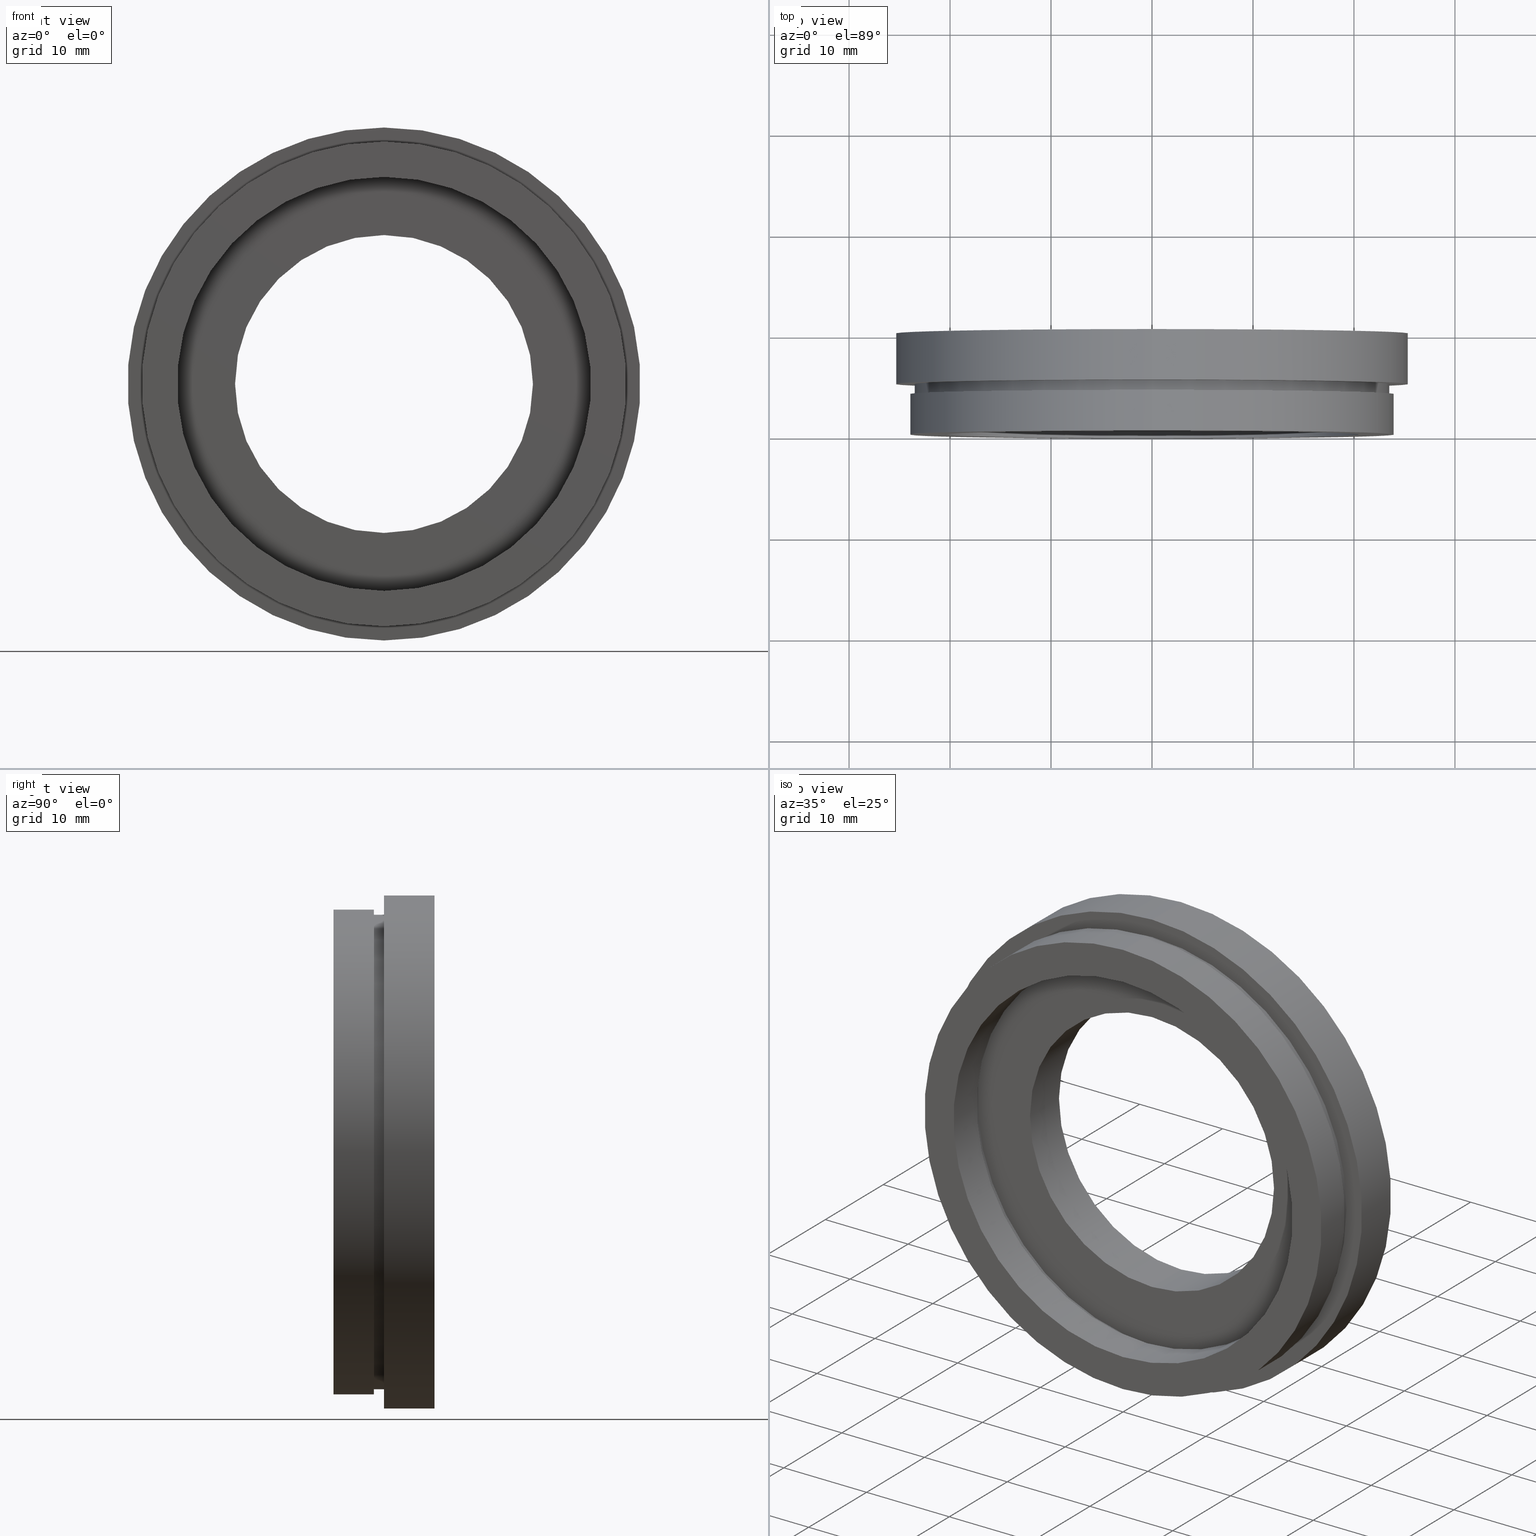
[diagram: canonical four-view strip — front | top / right | iso, engineering-drawing reading convention]
A machine part, canonical four-view strip (front | top / right | iso — engineering-drawing reading convention). The complete STEP part file that produces these views, byte-faithful:
ISO-10303-21;
HEADER;
FILE_DESCRIPTION (( 'STEP AP214' ),
    '1' );
FILE_NAME ('504106.STEP',
    '2019-10-10T03:19:35',
    ( 'user' ),
    ( '΢���й�' ),
    'SwSTEP 2.0',
    'SolidWorks 2016',
    '' );
FILE_SCHEMA (( 'AUTOMOTIVE_DESIGN' ));
ENDSEC;

DATA;
#1 = DIRECTION ( 'NONE',  ( 0.0000000000000000000, 0.0000000000000000000, 1.000000000000000000 ) ) ;
#2 = FACE_OUTER_BOUND ( 'NONE', #329, .T. ) ;
#3 = FILL_AREA_STYLE_COLOUR ( '', #39 ) ;
#4 = AXIS2_PLACEMENT_3D ( 'NONE', #80, #128, #228 ) ;
#5 = DIRECTION ( 'NONE',  ( 0.0000000000000000000, 0.0000000000000000000, 1.000000000000000000 ) ) ;
#6 = STYLED_ITEM ( 'NONE', ( #622 ), #111 ) ;
#7 = ORIENTED_EDGE ( 'NONE', *, *, #17, .T. ) ;
#8 = DIRECTION ( 'NONE',  ( 0.0000000000000000000, 0.0000000000000000000, 1.000000000000000000 ) ) ;
#9 = PRODUCT_DEFINITION_CONTEXT ( 'detailed design', #52, 'design' ) ;
#10 = FACE_OUTER_BOUND ( 'NONE', #341, .T. ) ;
#11 = CARTESIAN_POINT ( 'NONE',  ( 0.0000000000000000000, 4.999999999999999100, 0.0000000000000000000 ) ) ;
#12 = ORIENTED_EDGE ( 'NONE', *, *, #468, .T. ) ;
#13 = PRESENTATION_STYLE_ASSIGNMENT (( #607 ) ) ;
#14 = CYLINDRICAL_SURFACE ( 'NONE', #198, 21.10000000000000100 ) ;
#15 = VECTOR ( 'NONE', #16, 1000.000000000000000 ) ;
#16 = DIRECTION ( 'NONE',  ( -0.0000000000000000000, 1.000000000000000000, -0.0000000000000000000 ) ) ;
#17 = EDGE_CURVE ( 'NONE', #443, #312, #134, .T. ) ;
#18 = DIRECTION ( 'NONE',  ( -0.0000000000000000000, 1.000000000000000000, -0.0000000000000000000 ) ) ;
#19 = CARTESIAN_POINT ( 'NONE',  ( 0.0000000000000000000, 5.000000000000000900, 0.0000000000000000000 ) ) ;
#20 = DIRECTION ( 'NONE',  ( -0.0000000000000000000, 1.000000000000000000, -0.0000000000000000000 ) ) ;
#21 = DIRECTION ( 'NONE',  ( 0.0000000000000000000, 0.0000000000000000000, 1.000000000000000000 ) ) ;
#22 =( NAMED_UNIT ( * ) SI_UNIT ( $, .STERADIAN. ) SOLID_ANGLE_UNIT ( ) );
#23 = FILL_AREA_STYLE_COLOUR ( '', #250 ) ;
#24 = ORIENTED_EDGE ( 'NONE', *, *, #227, .T. ) ;
#25 = PLANE ( 'NONE',  #449 ) ;
#26 = AXIS2_PLACEMENT_3D ( 'NONE', #120, #473, #173 ) ;
#27 = FACE_OUTER_BOUND ( 'NONE', #63, .T. ) ;
#28 = DIRECTION ( 'NONE',  ( -0.0000000000000000000, 1.000000000000000000, -0.0000000000000000000 ) ) ;
#29 = DIRECTION ( 'NONE',  ( -0.0000000000000000000, 1.000000000000000000, -0.0000000000000000000 ) ) ;
#30 = MECHANICAL_DESIGN_GEOMETRIC_PRESENTATION_REPRESENTATION (  '', ( #121 ), #161 ) ;
#31 = CARTESIAN_POINT ( 'NONE',  ( 0.0000000000000000000, 5.000000000000000900, 0.0000000000000000000 ) ) ;
#32 = ORIENTED_EDGE ( 'NONE', *, *, #227, .F. ) ;
#33 = SURFACE_STYLE_FILL_AREA ( #238 ) ;
#34 = CARTESIAN_POINT ( 'NONE',  ( 0.0000000000000000000, 13.74468085106383300, 23.50000000000000000 ) ) ;
#35 = CARTESIAN_POINT ( 'NONE',  ( 0.0000000000000000000, 4.999999999999999100, 0.0000000000000000000 ) ) ;
#36 = STYLED_ITEM ( 'NONE', ( #46 ), #66 ) ;
#37 = PRESENTATION_STYLE_ASSIGNMENT (( #435 ) ) ;
#38 = CARTESIAN_POINT ( 'NONE',  ( 0.0000000000000000000, 13.74468085106383300, 0.0000000000000000000 ) ) ;
#39 = COLOUR_RGB ( '',1.000000000000000000, 1.000000000000000000, 1.000000000000000000 ) ;
#40 = CIRCLE ( 'NONE', #296, 25.39999999999999900 ) ;
#41 = VERTEX_POINT ( 'NONE', #350 ) ;
#42 = CARTESIAN_POINT ( 'NONE',  ( 0.0000000000000000000, 9.999999999999998200, 0.0000000000000000000 ) ) ;
#43 = COLOUR_RGB ( '',1.000000000000000000, 1.000000000000000000, 1.000000000000000000 ) ;
#44 = DIRECTION ( 'NONE',  ( 0.0000000000000000000, 0.0000000000000000000, 1.000000000000000000 ) ) ;
#45 = DIRECTION ( 'NONE',  ( 0.0000000000000000000, 0.0000000000000000000, 1.000000000000000000 ) ) ;
#46 = PRESENTATION_STYLE_ASSIGNMENT (( #54 ) ) ;
#47 = AXIS2_PLACEMENT_3D ( 'NONE', #620, #321, #337 ) ;
#48 = CARTESIAN_POINT ( 'NONE',  ( 0.0000000000000000000, 9.999999999999998200, 0.0000000000000000000 ) ) ;
#49 = VECTOR ( 'NONE', #492, 1000.000000000000000 ) ;
#50 = SURFACE_SIDE_STYLE ('',( #33 ) ) ;
#51 = EDGE_CURVE ( 'NONE', #394, #348, #587, .T. ) ;
#52 = APPLICATION_CONTEXT ( 'automotive_design' ) ;
#53 = MANIFOLD_SOLID_BREP ( '��ת1', #381 ) ;
#54 = SURFACE_STYLE_USAGE ( .BOTH. , #50 ) ;
#55 =( LENGTH_UNIT ( ) NAMED_UNIT ( * ) SI_UNIT ( .MILLI., .METRE. ) );
#56 = CIRCLE ( 'NONE', #569, 25.39999999999999900 ) ;
#57 = PRODUCT_DEFINITION_SHAPE ( 'NONE', 'NONE',  #231 ) ;
#58 = AXIS2_PLACEMENT_3D ( 'NONE', #616, #419, #596 ) ;
#59 = EDGE_LOOP ( 'NONE', ( #7, #409 ) ) ;
#60 = AXIS2_PLACEMENT_3D ( 'NONE', #11, #518, #21 ) ;
#61 = CARTESIAN_POINT ( 'NONE',  ( 2.584004746200915400E-015, 13.74468085106383300, -21.10000000000000100 ) ) ;
#62 = ORIENTED_EDGE ( 'NONE', *, *, #437, .T. ) ;
#63 = EDGE_LOOP ( 'NONE', ( #172, #368 ) ) ;
#64 = PRESENTATION_LAYER_ASSIGNMENT (  '', '', ( #121 ) ) ;
#65 = CIRCLE ( 'NONE', #47, 21.10000000000000100 ) ;
#66 = ADVANCED_FACE ( 'NONE', ( #117 ), #258, .T. ) ;
#67 = DIRECTION ( 'NONE',  ( -0.0000000000000000000, 1.000000000000000000, -0.0000000000000000000 ) ) ;
#68 = CIRCLE ( 'NONE', #452, 24.00000000000000000 ) ;
#69 = EDGE_CURVE ( 'NONE', #401, #182, #624, .T. ) ;
#70 = ORIENTED_EDGE ( 'NONE', *, *, #287, .F. ) ;
#71 = ORIENTED_EDGE ( 'NONE', *, *, #383, .F. ) ;
#72 = ORIENTED_EDGE ( 'NONE', *, *, #324, .T. ) ;
#73 = CARTESIAN_POINT ( 'NONE',  ( 0.0000000000000000000, 13.74468085106383300, 0.0000000000000000000 ) ) ;
#74 = DIRECTION ( 'NONE',  ( 0.0000000000000000000, 0.0000000000000000000, 1.000000000000000000 ) ) ;
#75 = PRODUCT_RELATED_PRODUCT_CATEGORY ( 'part', '', ( #581 ) ) ;
#76 = EDGE_LOOP ( 'NONE', ( #574, #585 ) ) ;
#77 =( NAMED_UNIT ( * ) SI_UNIT ( $, .STERADIAN. ) SOLID_ANGLE_UNIT ( ) );
#78 = AXIS2_PLACEMENT_3D ( 'NONE', #480, #88, #5 ) ;
#79 = CARTESIAN_POINT ( 'NONE',  ( 0.0000000000000000000, 9.999999999999998200, 0.0000000000000000000 ) ) ;
#80 = CARTESIAN_POINT ( 'NONE',  ( 0.0000000000000000000, 13.74468085106383300, 0.0000000000000000000 ) ) ;
#81 = ORIENTED_EDGE ( 'NONE', *, *, #310, .F. ) ;
#82 = CARTESIAN_POINT ( 'NONE',  ( 2.877919977996280300E-015, 4.000000000000000000, -23.50000000000000000 ) ) ;
#83 = ORIENTED_EDGE ( 'NONE', *, *, #418, .T. ) ;
#84 = VERTEX_POINT ( 'NONE', #427 ) ;
#85 = EDGE_LOOP ( 'NONE', ( #207, #572 ) ) ;
#86 = AXIS2_PLACEMENT_3D ( 'NONE', #216, #188, #573 ) ;
#87 = PRODUCT_DEFINITION_FORMATION_WITH_SPECIFIED_SOURCE ( '�κ�', '', #581, .NOT_KNOWN. ) ;
#88 = DIRECTION ( 'NONE',  ( -0.0000000000000000000, 1.000000000000000000, -0.0000000000000000000 ) ) ;
#89 = PRESENTATION_LAYER_ASSIGNMENT (  '', '', ( #106 ) ) ;
#90 = CARTESIAN_POINT ( 'NONE',  ( 0.0000000000000000000, 0.0000000000000000000, 20.50000000000000000 ) ) ;
#91 =( LENGTH_UNIT ( ) NAMED_UNIT ( * ) SI_UNIT ( .MILLI., .METRE. ) );
#92 = AXIS2_PLACEMENT_3D ( 'NONE', #403, #20, #74 ) ;
#93 = VERTEX_POINT ( 'NONE', #180 ) ;
#94 = AXIS2_PLACEMENT_3D ( 'NONE', #592, #167, #205 ) ;
#95 = FILL_AREA_STYLE ('',( #301 ) ) ;
#96 = CARTESIAN_POINT ( 'NONE',  ( 2.939152317953647900E-015, 0.0000000000000000000, -24.00000000000000000 ) ) ;
#97 = VECTOR ( 'NONE', #470, 1000.000000000000000 ) ;
#98 = AXIS2_PLACEMENT_3D ( 'NONE', #527, #322, #608 ) ;
#99 = ORIENTED_EDGE ( 'NONE', *, *, #383, .T. ) ;
#100 = CARTESIAN_POINT ( 'NONE',  ( 0.0000000000000000000, 4.999999999999999100, 21.10000000000000100 ) ) ;
#101 = ORIENTED_EDGE ( 'NONE', *, *, #247, .T. ) ;
#102 = DIRECTION ( 'NONE',  ( 0.0000000000000000000, 0.0000000000000000000, 1.000000000000000000 ) ) ;
#103 = CARTESIAN_POINT ( 'NONE',  ( 0.0000000000000000000, 9.999999999999998200, 25.39999999999999900 ) ) ;
#104 = ORIENTED_EDGE ( 'NONE', *, *, #354, .F. ) ;
#105 = MECHANICAL_DESIGN_GEOMETRIC_PRESENTATION_REPRESENTATION (  '', ( #351 ), #135 ) ;
#106 = STYLED_ITEM ( 'NONE', ( #107 ), #565 ) ;
#107 = PRESENTATION_STYLE_ASSIGNMENT (( #482 ) ) ;
#108 = AXIS2_PLACEMENT_3D ( 'NONE', #333, #615, #571 ) ;
#109 = ORIENTED_EDGE ( 'NONE', *, *, #277, .F. ) ;
#110 = VERTEX_POINT ( 'NONE', #186 ) ;
#111 = ADVANCED_FACE ( 'NONE', ( #395 ), #566, .T. ) ;
#112 = DIRECTION ( 'NONE',  ( -0.0000000000000000000, 1.000000000000000000, -0.0000000000000000000 ) ) ;
#113 = ORIENTED_EDGE ( 'NONE', *, *, #425, .F. ) ;
#114 = PRESENTATION_STYLE_ASSIGNMENT (( #138 ) ) ;
#115 = VERTEX_POINT ( 'NONE', #567 ) ;
#116 = EDGE_CURVE ( 'NONE', #294, #604, #562, .T. ) ;
#117 = FACE_OUTER_BOUND ( 'NONE', #463, .T. ) ;
#118 = ADVANCED_FACE ( 'NONE', ( #564 ), #469, .T. ) ;
#119 = CARTESIAN_POINT ( 'NONE',  ( 1.806354028742345800E-015, 9.999999999999998200, -14.75000000000000000 ) ) ;
#120 = CARTESIAN_POINT ( 'NONE',  ( 0.0000000000000000000, 0.0000000000000000000, 0.0000000000000000000 ) ) ;
#121 = STYLED_ITEM ( 'NONE', ( #13 ), #165 ) ;
#122 = DIRECTION ( 'NONE',  ( 0.0000000000000000000, 0.0000000000000000000, 1.000000000000000000 ) ) ;
#123 = CIRCLE ( 'NONE', #157, 23.50000000000000000 ) ;
#124 =( GEOMETRIC_REPRESENTATION_CONTEXT ( 3 ) GLOBAL_UNCERTAINTY_ASSIGNED_CONTEXT ( ( #421 ) ) GLOBAL_UNIT_ASSIGNED_CONTEXT ( ( #55, #602, #77 ) ) REPRESENTATION_CONTEXT ( 'NONE', 'WORKASPACE' ) );
#125 = DIRECTION ( 'NONE',  ( 0.0000000000000000000, 0.0000000000000000000, 1.000000000000000000 ) ) ;
#126 = DIRECTION ( 'NONE',  ( -0.0000000000000000000, 1.000000000000000000, -0.0000000000000000000 ) ) ;
#127 = MECHANICAL_DESIGN_GEOMETRIC_PRESENTATION_REPRESENTATION (  '', ( #106 ), #155 ) ;
#128 = DIRECTION ( 'NONE',  ( -0.0000000000000000000, 1.000000000000000000, -0.0000000000000000000 ) ) ;
#129 = CARTESIAN_POINT ( 'NONE',  ( 1.806354028742345800E-015, 4.999999999999999100, -14.75000000000000000 ) ) ;
#130 = EDGE_LOOP ( 'NONE', ( #304, #83, #334, #458 ) ) ;
#131 = ADVANCED_BREP_SHAPE_REPRESENTATION ( '504106', ( #53, #311 ), #124 ) ;
#132 = COLOUR_RGB ( '',1.000000000000000000, 1.000000000000000000, 1.000000000000000000 ) ;
#133 = CARTESIAN_POINT ( 'NONE',  ( 0.0000000000000000000, 4.999999999999999100, 0.0000000000000000000 ) ) ;
#134 = CIRCLE ( 'NONE', #343, 14.75000000000000000 ) ;
#135 =( GEOMETRIC_REPRESENTATION_CONTEXT ( 3 ) GLOBAL_UNCERTAINTY_ASSIGNED_CONTEXT ( ( #254 ) ) GLOBAL_UNIT_ASSIGNED_CONTEXT ( ( #450, #269, #515 ) ) REPRESENTATION_CONTEXT ( 'NONE', 'WORKASPACE' ) );
#136 = CARTESIAN_POINT ( 'NONE',  ( 0.0000000000000000000, 13.74468085106383300, 14.75000000000000000 ) ) ;
#137 = AXIS2_PLACEMENT_3D ( 'NONE', #158, #513, #466 ) ;
#138 = SURFACE_STYLE_USAGE ( .BOTH. , #438 ) ;
#139 = ORIENTED_EDGE ( 'NONE', *, *, #310, .T. ) ;
#140 = CARTESIAN_POINT ( 'NONE',  ( 0.0000000000000000000, 13.74468085106383300, 0.0000000000000000000 ) ) ;
#141 = CIRCLE ( 'NONE', #229, 14.75000000000000000 ) ;
#142 = DIRECTION ( 'NONE',  ( -0.0000000000000000000, 1.000000000000000000, -0.0000000000000000000 ) ) ;
#143 = SHAPE_DEFINITION_REPRESENTATION ( #57, #131 ) ;
#144 = CARTESIAN_POINT ( 'NONE',  ( 0.0000000000000000000, 4.000000000000000000, 0.0000000000000000000 ) ) ;
#145 =( NAMED_UNIT ( * ) SI_UNIT ( $, .STERADIAN. ) SOLID_ANGLE_UNIT ( ) );
#146 = AXIS2_PLACEMENT_3D ( 'NONE', #405, #400, #125 ) ;
#147 = DIRECTION ( 'NONE',  ( 0.0000000000000000000, -0.0000000000000000000, -1.000000000000000000 ) ) ;
#148 = EDGE_CURVE ( 'NONE', #274, #604, #539, .T. ) ;
#149 = ORIENTED_EDGE ( 'NONE', *, *, #148, .T. ) ;
#150 = EDGE_LOOP ( 'NONE', ( #327, #232, #412, #62 ) ) ;
#151 = FILL_AREA_STYLE_COLOUR ( '', #550 ) ;
#152 = EDGE_LOOP ( 'NONE', ( #591, #408, #24, #374 ) ) ;
#153 = PLANE ( 'NONE',  #545 ) ;
#154 = ORIENTED_EDGE ( 'NONE', *, *, #560, .T. ) ;
#155 =( GEOMETRIC_REPRESENTATION_CONTEXT ( 3 ) GLOBAL_UNCERTAINTY_ASSIGNED_CONTEXT ( ( #365 ) ) GLOBAL_UNIT_ASSIGNED_CONTEXT ( ( #538, #540, #145 ) ) REPRESENTATION_CONTEXT ( 'NONE', 'WORKASPACE' ) );
#156 = CARTESIAN_POINT ( 'NONE',  ( 21.10000000000000100, 4.999999999999999100, 0.0000000000000000000 ) ) ;
#157 = AXIS2_PLACEMENT_3D ( 'NONE', #144, #265, #206 ) ;
#158 = CARTESIAN_POINT ( 'NONE',  ( 0.0000000000000000000, 0.0000000000000000000, 0.0000000000000000000 ) ) ;
#159 = ADVANCED_FACE ( 'NONE', ( #556, #579 ), #548, .F. ) ;
#160 = EDGE_LOOP ( 'NONE', ( #72, #423 ) ) ;
#161 =( GEOMETRIC_REPRESENTATION_CONTEXT ( 3 ) GLOBAL_UNCERTAINTY_ASSIGNED_CONTEXT ( ( #589 ) ) GLOBAL_UNIT_ASSIGNED_CONTEXT ( ( #328, #357, #352 ) ) REPRESENTATION_CONTEXT ( 'NONE', 'WORKASPACE' ) );
#162 = ORIENTED_EDGE ( 'NONE', *, *, #324, .F. ) ;
#163 = ORIENTED_EDGE ( 'NONE', *, *, #277, .T. ) ;
#164 = LINE ( 'NONE', #521, #97 ) ;
#165 = ADVANCED_FACE ( 'NONE', ( #547 ), #487, .F. ) ;
#166 = ORIENTED_EDGE ( 'NONE', *, *, #259, .F. ) ;
#167 = DIRECTION ( 'NONE',  ( -0.0000000000000000000, 1.000000000000000000, 0.0000000000000000000 ) ) ;
#168 = PRODUCT_CONTEXT ( 'NONE', #191, 'mechanical' ) ;
#169 = CARTESIAN_POINT ( 'NONE',  ( 0.0000000000000000000, 13.74468085106383300, 0.0000000000000000000 ) ) ;
#170 = DIRECTION ( 'NONE',  ( -0.0000000000000000000, 1.000000000000000000, -0.0000000000000000000 ) ) ;
#171 = VERTEX_POINT ( 'NONE', #610 ) ;
#172 = ORIENTED_EDGE ( 'NONE', *, *, #416, .T. ) ;
#173 = DIRECTION ( 'NONE',  ( 0.0000000000000000000, 0.0000000000000000000, 1.000000000000000000 ) ) ;
#174 = VERTEX_POINT ( 'NONE', #353 ) ;
#175 = EDGE_CURVE ( 'NONE', #401, #376, #524, .T. ) ;
#176 = DIRECTION ( 'NONE',  ( 0.0000000000000000000, 0.0000000000000000000, 1.000000000000000000 ) ) ;
#177 = DIRECTION ( 'NONE',  ( 0.0000000000000000000, 0.0000000000000000000, 1.000000000000000000 ) ) ;
#178 = CYLINDRICAL_SURFACE ( 'NONE', #86, 23.50000000000000000 ) ;
#179 = CARTESIAN_POINT ( 'NONE',  ( 14.75000000000000000, 9.999999999999998200, 0.0000000000000000000 ) ) ;
#180 = CARTESIAN_POINT ( 'NONE',  ( 0.0000000000000000000, 0.0000000000000000000, 24.00000000000000000 ) ) ;
#181 = DIRECTION ( 'NONE',  ( 0.0000000000000000000, 0.0000000000000000000, 1.000000000000000000 ) ) ;
#182 = VERTEX_POINT ( 'NONE', #445 ) ;
#183 = ORIENTED_EDGE ( 'NONE', *, *, #491, .F. ) ;
#184 = AXIS2_PLACEMENT_3D ( 'NONE', #38, #340, #8 ) ;
#185 = EDGE_LOOP ( 'NONE', ( #204, #335 ) ) ;
#186 = CARTESIAN_POINT ( 'NONE',  ( 2.584004746200915400E-015, 4.000000000000000000, -21.10000000000000100 ) ) ;
#187 = ORIENTED_EDGE ( 'NONE', *, *, #175, .T. ) ;
#188 = DIRECTION ( 'NONE',  ( -0.0000000000000000000, 1.000000000000000000, -0.0000000000000000000 ) ) ;
#189 = CARTESIAN_POINT ( 'NONE',  ( 2.877919977996280300E-015, 5.000000000000000900, -23.50000000000000000 ) ) ;
#190 = AXIS2_PLACEMENT_3D ( 'NONE', #347, #393, #508 ) ;
#191 = APPLICATION_CONTEXT ( 'automotive_design' ) ;
#192 = FILL_AREA_STYLE_COLOUR ( '', #201 ) ;
#193 = ORIENTED_EDGE ( 'NONE', *, *, #542, .T. ) ;
#194 = PRESENTATION_LAYER_ASSIGNMENT (  '', '', ( #36 ) ) ;
#195 = ORIENTED_EDGE ( 'NONE', *, *, #563, .F. ) ;
#196 = ORIENTED_EDGE ( 'NONE', *, *, #392, .F. ) ;
#197 = FILL_AREA_STYLE_COLOUR ( '', #576 ) ;
#198 = AXIS2_PLACEMENT_3D ( 'NONE', #169, #411, #268 ) ;
#199 = DIRECTION ( 'NONE',  ( -0.0000000000000000000, 1.000000000000000000, -0.0000000000000000000 ) ) ;
#200 = AXIS2_PLACEMENT_3D ( 'NONE', #79, #474, #122 ) ;
#201 = COLOUR_RGB ( '',1.000000000000000000, 1.000000000000000000, 1.000000000000000000 ) ;
#202 = CARTESIAN_POINT ( 'NONE',  ( 1.806354028742345800E-015, 13.74468085106383300, -14.75000000000000000 ) ) ;
#203 = ORIENTED_EDGE ( 'NONE', *, *, #247, .F. ) ;
#204 = ORIENTED_EDGE ( 'NONE', *, *, #363, .T. ) ;
#205 = DIRECTION ( 'NONE',  ( 0.0000000000000000000, 0.0000000000000000000, 1.000000000000000000 ) ) ;
#206 = DIRECTION ( 'NONE',  ( 0.0000000000000000000, 0.0000000000000000000, 1.000000000000000000 ) ) ;
#207 = ORIENTED_EDGE ( 'NONE', *, *, #148, .F. ) ;
#208 = CARTESIAN_POINT ( 'NONE',  ( 0.0000000000000000000, 4.000000000000000000, 0.0000000000000000000 ) ) ;
#209 = SURFACE_STYLE_FILL_AREA ( #387 ) ;
#210 = AXIS2_PLACEMENT_3D ( 'NONE', #208, #112, #283 ) ;
#211 = CARTESIAN_POINT ( 'NONE',  ( 0.0000000000000000000, 13.74468085106383300, 0.0000000000000000000 ) ) ;
#212 = EDGE_CURVE ( 'NONE', #110, #171, #478, .T. ) ;
#213 = ORIENTED_EDGE ( 'NONE', *, *, #397, .T. ) ;
#214 = PRESENTATION_LAYER_ASSIGNMENT (  '', '', ( #546 ) ) ;
#215 = EDGE_LOOP ( 'NONE', ( #101, #154, #162, #81 ) ) ;
#216 = CARTESIAN_POINT ( 'NONE',  ( 0.0000000000000000000, 13.74468085106383300, 0.0000000000000000000 ) ) ;
#217 = EDGE_LOOP ( 'NONE', ( #104, #249 ) ) ;
#218 = STYLED_ITEM ( 'NONE', ( #336 ), #388 ) ;
#219 = FACE_OUTER_BOUND ( 'NONE', #248, .T. ) ;
#220 = ADVANCED_FACE ( 'NONE', ( #497, #503 ), #364, .F. ) ;
#221 = MECHANICAL_DESIGN_GEOMETRIC_PRESENTATION_REPRESENTATION (  '', ( #385 ), #314 ) ;
#222 = MECHANICAL_DESIGN_GEOMETRIC_PRESENTATION_REPRESENTATION (  '', ( #36 ), #281 ) ;
#223 =( NAMED_UNIT ( * ) PLANE_ANGLE_UNIT ( ) SI_UNIT ( $, .RADIAN. ) );
#224 =( NAMED_UNIT ( * ) PLANE_ANGLE_UNIT ( ) SI_UNIT ( $, .RADIAN. ) );
#225 = ADVANCED_FACE ( 'NONE', ( #519, #476 ), #153, .F. ) ;
#226 = CYLINDRICAL_SURFACE ( 'NONE', #597, 14.75000000000000000 ) ;
#227 = EDGE_CURVE ( 'NONE', #242, #577, #494, .T. ) ;
#228 = DIRECTION ( 'NONE',  ( 0.0000000000000000000, 0.0000000000000000000, 1.000000000000000000 ) ) ;
#229 = AXIS2_PLACEMENT_3D ( 'NONE', #490, #512, #475 ) ;
#230 = CIRCLE ( 'NONE', #356, 24.00000000000000000 ) ;
#231 = PRODUCT_DEFINITION ( 'δ֪', '', #87, #9 ) ;
#232 = ORIENTED_EDGE ( 'NONE', *, *, #17, .F. ) ;
#233 = LINE ( 'NONE', #618, #252 ) ;
#234 = CIRCLE ( 'NONE', #315, 20.50000000000000000 ) ;
#235 = CARTESIAN_POINT ( 'NONE',  ( 0.0000000000000000000, 13.74468085106383300, 25.39999999999999900 ) ) ;
#236 = DIRECTION ( 'NONE',  ( 0.0000000000000000000, 0.0000000000000000000, 1.000000000000000000 ) ) ;
#237 = CARTESIAN_POINT ( 'NONE',  ( 0.0000000000000000000, 4.000000000000000000, 0.0000000000000000000 ) ) ;
#238 = FILL_AREA_STYLE ('',( #3 ) ) ;
#239 = ORIENTED_EDGE ( 'NONE', *, *, #418, .F. ) ;
#240 = ORIENTED_EDGE ( 'NONE', *, *, #504, .T. ) ;
#241 = SURFACE_SIDE_STYLE ('',( #251 ) ) ;
#242 = VERTEX_POINT ( 'NONE', #600 ) ;
#243 = LINE ( 'NONE', #34, #313 ) ;
#244 = DIRECTION ( 'NONE',  ( -0.0000000000000000000, 1.000000000000000000, -0.0000000000000000000 ) ) ;
#245 = CYLINDRICAL_SURFACE ( 'NONE', #184, 20.50000000000000000 ) ;
#246 = AXIS2_PLACEMENT_3D ( 'NONE', #424, #366, #147 ) ;
#247 = EDGE_CURVE ( 'NONE', #93, #399, #554, .T. ) ;
#248 = EDGE_LOOP ( 'NONE', ( #434, #319, #99, #149 ) ) ;
#249 = ORIENTED_EDGE ( 'NONE', *, *, #397, .F. ) ;
#250 = COLOUR_RGB ( '',1.000000000000000000, 1.000000000000000000, 1.000000000000000000 ) ;
#251 = SURFACE_STYLE_FILL_AREA ( #464 ) ;
#252 = VECTOR ( 'NONE', #126, 1000.000000000000000 ) ;
#253 = CIRCLE ( 'NONE', #420, 21.10000000000000100 ) ;
#254 = UNCERTAINTY_MEASURE_WITH_UNIT (LENGTH_MEASURE( 1.000000000000000100E-005 ), #450, 'distance_accuracy_value', 'NONE');
#255 = DIRECTION ( 'NONE',  ( -0.0000000000000000000, 1.000000000000000000, -0.0000000000000000000 ) ) ;
#256 = ORIENTED_EDGE ( 'NONE', *, *, #320, .T. ) ;
#257 = PRESENTATION_LAYER_ASSIGNMENT (  '', '', ( #218 ) ) ;
#258 = CYLINDRICAL_SURFACE ( 'NONE', #146, 24.00000000000000000 ) ;
#259 = EDGE_CURVE ( 'NONE', #376, #115, #477, .T. ) ;
#260 = EDGE_LOOP ( 'NONE', ( #256, #430, #195, #70 ) ) ;
#261 = PLANE ( 'NONE',  #58 ) ;
#262 =( LENGTH_UNIT ( ) NAMED_UNIT ( * ) SI_UNIT ( .MILLI., .METRE. ) );
#263 = DIRECTION ( 'NONE',  ( -0.0000000000000000000, 1.000000000000000000, -0.0000000000000000000 ) ) ;
#264 = AXIS2_PLACEMENT_3D ( 'NONE', #31, #406, #531 ) ;
#265 = DIRECTION ( 'NONE',  ( -0.0000000000000000000, 1.000000000000000000, -0.0000000000000000000 ) ) ;
#266 = AXIS2_PLACEMENT_3D ( 'NONE', #432, #244, #332 ) ;
#267 = DIRECTION ( 'NONE',  ( -0.0000000000000000000, 1.000000000000000000, 0.0000000000000000000 ) ) ;
#268 = DIRECTION ( 'NONE',  ( 0.0000000000000000000, 0.0000000000000000000, 1.000000000000000000 ) ) ;
#269 =( NAMED_UNIT ( * ) PLANE_ANGLE_UNIT ( ) SI_UNIT ( $, .RADIAN. ) );
#270 =( NAMED_UNIT ( * ) PLANE_ANGLE_UNIT ( ) SI_UNIT ( $, .RADIAN. ) );
#271 = ORIENTED_EDGE ( 'NONE', *, *, #342, .T. ) ;
#272 = CIRCLE ( 'NONE', #264, 23.50000000000000000 ) ;
#273 = ORIENTED_EDGE ( 'NONE', *, *, #363, .F. ) ;
#274 = VERTEX_POINT ( 'NONE', #280 ) ;
#275 = DIRECTION ( 'NONE',  ( 0.0000000000000000000, 0.0000000000000000000, 1.000000000000000000 ) ) ;
#276 = SURFACE_SIDE_STYLE ('',( #549 ) ) ;
#277 = EDGE_CURVE ( 'NONE', #182, #401, #123, .T. ) ;
#278 = UNCERTAINTY_MEASURE_WITH_UNIT (LENGTH_MEASURE( 1.000000000000000100E-005 ), #91, 'distance_accuracy_value', 'NONE');
#279 = ADVANCED_FACE ( 'NONE', ( #462, #362 ), #261, .F. ) ;
#280 = CARTESIAN_POINT ( 'NONE',  ( 0.0000000000000000000, 4.000000000000000000, 20.50000000000000000 ) ) ;
#281 =( GEOMETRIC_REPRESENTATION_CONTEXT ( 3 ) GLOBAL_UNCERTAINTY_ASSIGNED_CONTEXT ( ( #532 ) ) GLOBAL_UNIT_ASSIGNED_CONTEXT ( ( #541, #223, #303 ) ) REPRESENTATION_CONTEXT ( 'NONE', 'WORKASPACE' ) );
#282 = PRESENTATION_LAYER_ASSIGNMENT (  '', '', ( #385 ) ) ;
#283 = DIRECTION ( 'NONE',  ( 0.0000000000000000000, 0.0000000000000000000, 1.000000000000000000 ) ) ;
#284 = EDGE_LOOP ( 'NONE', ( #163, #187, #273, #507 ) ) ;
#285 = EDGE_CURVE ( 'NONE', #294, #309, #396, .T. ) ;
#286 = CIRCLE ( 'NONE', #489, 14.75000000000000000 ) ;
#287 = EDGE_CURVE ( 'NONE', #535, #348, #316, .T. ) ;
#288 = DIRECTION ( 'NONE',  ( 0.0000000000000000000, -1.000000000000000000, 0.0000000000000000000 ) ) ;
#289 = DIRECTION ( 'NONE',  ( -0.0000000000000000000, 1.000000000000000000, -0.0000000000000000000 ) ) ;
#290 =( GEOMETRIC_REPRESENTATION_CONTEXT ( 3 ) GLOBAL_UNCERTAINTY_ASSIGNED_CONTEXT ( ( #509 ) ) GLOBAL_UNIT_ASSIGNED_CONTEXT ( ( #555, #270, #22 ) ) REPRESENTATION_CONTEXT ( 'NONE', 'WORKASPACE' ) );
#291 = DIRECTION ( 'NONE',  ( -0.0000000000000000000, 1.000000000000000000, -0.0000000000000000000 ) ) ;
#292 = VERTEX_POINT ( 'NONE', #119 ) ;
#293 = DIRECTION ( 'NONE',  ( 0.0000000000000000000, -0.0000000000000000000, -1.000000000000000000 ) ) ;
#294 = VERTEX_POINT ( 'NONE', #442 ) ;
#295 = SURFACE_STYLE_USAGE ( .BOTH. , #495 ) ;
#296 = AXIS2_PLACEMENT_3D ( 'NONE', #484, #263, #1 ) ;
#297 = ORIENTED_EDGE ( 'NONE', *, *, #285, .F. ) ;
#298 = CIRCLE ( 'NONE', #60, 21.10000000000000100 ) ;
#299 = ORIENTED_EDGE ( 'NONE', *, *, #617, .T. ) ;
#300 = AXIS2_PLACEMENT_3D ( 'NONE', #48, #302, #236 ) ;
#301 = FILL_AREA_STYLE_COLOUR ( '', #132 ) ;
#302 = DIRECTION ( 'NONE',  ( -0.0000000000000000000, 1.000000000000000000, -0.0000000000000000000 ) ) ;
#303 =( NAMED_UNIT ( * ) SI_UNIT ( $, .STERADIAN. ) SOLID_ANGLE_UNIT ( ) );
#304 = ORIENTED_EDGE ( 'NONE', *, *, #514, .F. ) ;
#305 = EDGE_LOOP ( 'NONE', ( #193, #346 ) ) ;
#306 = VERTEX_POINT ( 'NONE', #440 ) ;
#307 =( GEOMETRIC_REPRESENTATION_CONTEXT ( 3 ) GLOBAL_UNCERTAINTY_ASSIGNED_CONTEXT ( ( #605 ) ) GLOBAL_UNIT_ASSIGNED_CONTEXT ( ( #262, #461, #586 ) ) REPRESENTATION_CONTEXT ( 'NONE', 'WORKASPACE' ) );
#308 = CARTESIAN_POINT ( 'NONE',  ( 0.0000000000000000000, 4.999999999999999100, 14.75000000000000000 ) ) ;
#309 = VERTEX_POINT ( 'NONE', #90 ) ;
#310 = EDGE_CURVE ( 'NONE', #93, #84, #164, .T. ) ;
#311 = AXIS2_PLACEMENT_3D ( 'NONE', #543, #275, #580 ) ;
#312 = VERTEX_POINT ( 'NONE', #129 ) ;
#313 = VECTOR ( 'NONE', #375, 1000.000000000000000 ) ;
#314 =( GEOMETRIC_REPRESENTATION_CONTEXT ( 3 ) GLOBAL_UNCERTAINTY_ASSIGNED_CONTEXT ( ( #278 ) ) GLOBAL_UNIT_ASSIGNED_CONTEXT ( ( #91, #594, #413 ) ) REPRESENTATION_CONTEXT ( 'NONE', 'WORKASPACE' ) );
#315 = AXIS2_PLACEMENT_3D ( 'NONE', #528, #429, #181 ) ;
#316 = LINE ( 'NONE', #235, #431 ) ;
#317 = SURFACE_STYLE_USAGE ( .BOTH. , #553 ) ;
#318 = COLOUR_RGB ( '',1.000000000000000000, 1.000000000000000000, 1.000000000000000000 ) ;
#319 = ORIENTED_EDGE ( 'NONE', *, *, #542, .F. ) ;
#320 = EDGE_CURVE ( 'NONE', #535, #174, #40, .T. ) ;
#321 = DIRECTION ( 'NONE',  ( -0.0000000000000000000, 1.000000000000000000, -0.0000000000000000000 ) ) ;
#322 = DIRECTION ( 'NONE',  ( -0.0000000000000000000, 1.000000000000000000, -0.0000000000000000000 ) ) ;
#323 = ADVANCED_FACE ( 'NONE', ( #471 ), #612, .T. ) ;
#324 = EDGE_CURVE ( 'NONE', #84, #306, #230, .T. ) ;
#325 = DIRECTION ( 'NONE',  ( 0.0000000000000000000, 0.0000000000000000000, 1.000000000000000000 ) ) ;
#326 =( GEOMETRIC_REPRESENTATION_CONTEXT ( 3 ) GLOBAL_UNCERTAINTY_ASSIGNED_CONTEXT ( ( #483 ) ) GLOBAL_UNIT_ASSIGNED_CONTEXT ( ( #339, #224, #613 ) ) REPRESENTATION_CONTEXT ( 'NONE', 'WORKASPACE' ) );
#327 = ORIENTED_EDGE ( 'NONE', *, *, #617, .F. ) ;
#328 =( LENGTH_UNIT ( ) NAMED_UNIT ( * ) SI_UNIT ( .MILLI., .METRE. ) );
#329 = EDGE_LOOP ( 'NONE', ( #297, #390, #240, #71 ) ) ;
#330 = FILL_AREA_STYLE ('',( #197 ) ) ;
#331 = CARTESIAN_POINT ( 'NONE',  ( 2.877919977996280300E-015, 13.74468085106383300, -23.50000000000000000 ) ) ;
#332 = DIRECTION ( 'NONE',  ( 0.0000000000000000000, 0.0000000000000000000, 1.000000000000000000 ) ) ;
#333 = CARTESIAN_POINT ( 'NONE',  ( 0.0000000000000000000, 4.000000000000000000, 0.0000000000000000000 ) ) ;
#334 = ORIENTED_EDGE ( 'NONE', *, *, #287, .T. ) ;
#335 = ORIENTED_EDGE ( 'NONE', *, *, #259, .T. ) ;
#336 = PRESENTATION_STYLE_ASSIGNMENT (( #295 ) ) ;
#337 = DIRECTION ( 'NONE',  ( 0.0000000000000000000, 0.0000000000000000000, 1.000000000000000000 ) ) ;
#338 = CARTESIAN_POINT ( 'NONE',  ( 3.110602869834276900E-015, 13.74468085106383300, -25.39999999999999900 ) ) ;
#339 =( LENGTH_UNIT ( ) NAMED_UNIT ( * ) SI_UNIT ( .MILLI., .METRE. ) );
#340 = DIRECTION ( 'NONE',  ( -0.0000000000000000000, 1.000000000000000000, -0.0000000000000000000 ) ) ;
#341 = EDGE_LOOP ( 'NONE', ( #621, #606, #12, #166 ) ) ;
#342 = EDGE_CURVE ( 'NONE', #399, #93, #505, .T. ) ;
#343 = AXIS2_PLACEMENT_3D ( 'NONE', #133, #558, #511 ) ;
#344 = PRESENTATION_LAYER_ASSIGNMENT (  '', '', ( #351 ) ) ;
#345 = EDGE_LOOP ( 'NONE', ( #113, #441, #213, #32 ) ) ;
#346 = ORIENTED_EDGE ( 'NONE', *, *, #285, .T. ) ;
#347 = CARTESIAN_POINT ( 'NONE',  ( 0.0000000000000000000, 13.74468085106383300, 0.0000000000000000000 ) ) ;
#348 = VERTEX_POINT ( 'NONE', #103 ) ;
#349 = ORIENTED_EDGE ( 'NONE', *, *, #69, .F. ) ;
#350 = CARTESIAN_POINT ( 'NONE',  ( 0.0000000000000000000, 9.999999999999998200, 14.75000000000000000 ) ) ;
#351 = STYLED_ITEM ( 'NONE', ( #114 ), #53 ) ;
#352 =( NAMED_UNIT ( * ) SI_UNIT ( $, .STERADIAN. ) SOLID_ANGLE_UNIT ( ) );
#353 = CARTESIAN_POINT ( 'NONE',  ( 3.110602869834276900E-015, 5.000000000000000900, -25.39999999999999900 ) ) ;
#354 = EDGE_CURVE ( 'NONE', #577, #171, #298, .T. ) ;
#355 = SURFACE_STYLE_FILL_AREA ( #95 ) ;
#356 = AXIS2_PLACEMENT_3D ( 'NONE', #237, #516, #506 ) ;
#357 =( NAMED_UNIT ( * ) PLANE_ANGLE_UNIT ( ) SI_UNIT ( $, .RADIAN. ) );
#358 = MECHANICAL_DESIGN_GEOMETRIC_PRESENTATION_REPRESENTATION (  '', ( #218 ), #326 ) ;
#359 = CARTESIAN_POINT ( 'NONE',  ( 2.510525938252074500E-015, 4.000000000000000000, -20.50000000000000000 ) ) ;
#360 = AXIS2_PLACEMENT_3D ( 'NONE', #140, #407, #176 ) ;
#361 = DIRECTION ( 'NONE',  ( 0.0000000000000000000, 0.0000000000000000000, 1.000000000000000000 ) ) ;
#362 = FACE_OUTER_BOUND ( 'NONE', #160, .T. ) ;
#363 = EDGE_CURVE ( 'NONE', #115, #376, #272, .T. ) ;
#364 = PLANE ( 'NONE',  #623 ) ;
#365 = UNCERTAINTY_MEASURE_WITH_UNIT (LENGTH_MEASURE( 1.000000000000000100E-005 ), #538, 'distance_accuracy_value', 'NONE');
#366 = DIRECTION ( 'NONE',  ( 0.0000000000000000000, -1.000000000000000000, 0.0000000000000000000 ) ) ;
#367 = ADVANCED_FACE ( 'NONE', ( #611 ), #14, .F. ) ;
#368 = ORIENTED_EDGE ( 'NONE', *, *, #425, .T. ) ;
#369 = FILL_AREA_STYLE_COLOUR ( '', #43 ) ;
#370 = CARTESIAN_POINT ( 'NONE',  ( 0.0000000000000000000, 13.74468085106383300, 21.10000000000000100 ) ) ;
#371 = AXIS2_PLACEMENT_3D ( 'NONE', #42, #199, #502 ) ;
#372 = PLANE ( 'NONE',  #246 ) ;
#373 = CARTESIAN_POINT ( 'NONE',  ( 3.110602869834276900E-015, 9.999999999999998200, -25.39999999999999900 ) ) ;
#374 = ORIENTED_EDGE ( 'NONE', *, *, #354, .T. ) ;
#375 = DIRECTION ( 'NONE',  ( -0.0000000000000000000, 1.000000000000000000, -0.0000000000000000000 ) ) ;
#376 = VERTEX_POINT ( 'NONE', #189 ) ;
#377 = FILL_AREA_STYLE_COLOUR ( '', #318 ) ;
#378 = SURFACE_SIDE_STYLE ('',( #209 ) ) ;
#379 = MECHANICAL_DESIGN_GEOMETRIC_PRESENTATION_REPRESENTATION (  '', ( #6 ), #307 ) ;
#380 = CARTESIAN_POINT ( 'NONE',  ( 0.0000000000000000000, 5.000000000000000900, 0.0000000000000000000 ) ) ;
#381 = CLOSED_SHELL ( 'NONE', ( #111, #118, #323, #165, #595, #467, #565, #457, #367, #220, #388, #510, #415, #225, #520, #279, #66, #159 ) ) ;
#382 = EDGE_LOOP ( 'NONE', ( #203, #384 ) ) ;
#383 = EDGE_CURVE ( 'NONE', #309, #274, #493, .T. ) ;
#384 = ORIENTED_EDGE ( 'NONE', *, *, #342, .F. ) ;
#385 = STYLED_ITEM ( 'NONE', ( #37 ), #131 ) ;
#386 = AXIS2_PLACEMENT_3D ( 'NONE', #211, #255, #537 ) ;
#387 = FILL_AREA_STYLE ('',( #369 ) ) ;
#388 = ADVANCED_FACE ( 'NONE', ( #485 ), #226, .F. ) ;
#389 = AXIS2_PLACEMENT_3D ( 'NONE', #584, #557, #517 ) ;
#390 = ORIENTED_EDGE ( 'NONE', *, *, #116, .T. ) ;
#391 = DIRECTION ( 'NONE',  ( -0.0000000000000000000, 1.000000000000000000, -0.0000000000000000000 ) ) ;
#392 = EDGE_CURVE ( 'NONE', #306, #84, #68, .T. ) ;
#393 = DIRECTION ( 'NONE',  ( -0.0000000000000000000, 1.000000000000000000, -0.0000000000000000000 ) ) ;
#394 = VERTEX_POINT ( 'NONE', #373 ) ;
#395 = FACE_OUTER_BOUND ( 'NONE', #215, .T. ) ;
#396 = CIRCLE ( 'NONE', #92, 20.50000000000000000 ) ;
#397 = EDGE_CURVE ( 'NONE', #171, #577, #253, .T. ) ;
#398 = DIRECTION ( 'NONE',  ( -0.0000000000000000000, 1.000000000000000000, -0.0000000000000000000 ) ) ;
#399 = VERTEX_POINT ( 'NONE', #96 ) ;
#400 = DIRECTION ( 'NONE',  ( -0.0000000000000000000, 1.000000000000000000, -0.0000000000000000000 ) ) ;
#401 = VERTEX_POINT ( 'NONE', #82 ) ;
#402 = LINE ( 'NONE', #202, #588 ) ;
#403 = CARTESIAN_POINT ( 'NONE',  ( 0.0000000000000000000, 0.0000000000000000000, 0.0000000000000000000 ) ) ;
#404 = EDGE_CURVE ( 'NONE', #443, #41, #414, .T. ) ;
#405 = CARTESIAN_POINT ( 'NONE',  ( 0.0000000000000000000, 13.74468085106383300, 0.0000000000000000000 ) ) ;
#406 = DIRECTION ( 'NONE',  ( -0.0000000000000000000, 1.000000000000000000, -0.0000000000000000000 ) ) ;
#407 = DIRECTION ( 'NONE',  ( -0.0000000000000000000, 1.000000000000000000, -0.0000000000000000000 ) ) ;
#408 = ORIENTED_EDGE ( 'NONE', *, *, #416, .F. ) ;
#409 = ORIENTED_EDGE ( 'NONE', *, *, #428, .T. ) ;
#410 = EDGE_LOOP ( 'NONE', ( #578, #299, #486, #451 ) ) ;
#411 = DIRECTION ( 'NONE',  ( -0.0000000000000000000, 1.000000000000000000, -0.0000000000000000000 ) ) ;
#412 = ORIENTED_EDGE ( 'NONE', *, *, #404, .T. ) ;
#413 =( NAMED_UNIT ( * ) SI_UNIT ( $, .STERADIAN. ) SOLID_ANGLE_UNIT ( ) );
#414 = LINE ( 'NONE', #136, #49 ) ;
#415 = ADVANCED_FACE ( 'NONE', ( #433 ), #499, .T. ) ;
#416 = EDGE_CURVE ( 'NONE', #242, #110, #417, .T. ) ;
#417 = CIRCLE ( 'NONE', #108, 21.10000000000000100 ) ;
#418 = EDGE_CURVE ( 'NONE', #174, #535, #56, .T. ) ;
#419 = DIRECTION ( 'NONE',  ( 0.0000000000000000000, -1.000000000000000000, 0.0000000000000000000 ) ) ;
#420 = AXIS2_PLACEMENT_3D ( 'NONE', #534, #391, #361 ) ;
#421 = UNCERTAINTY_MEASURE_WITH_UNIT (LENGTH_MEASURE( 1.000000000000000100E-005 ), #55, 'distance_accuracy_value', 'NONE');
#422 = ORIENTED_EDGE ( 'NONE', *, *, #560, .F. ) ;
#423 = ORIENTED_EDGE ( 'NONE', *, *, #392, .T. ) ;
#424 = CARTESIAN_POINT ( 'NONE',  ( 20.50000000000000000, 3.999999999999999100, 0.0000000000000000000 ) ) ;
#425 = EDGE_CURVE ( 'NONE', #110, #242, #65, .T. ) ;
#426 = CARTESIAN_POINT ( 'NONE',  ( 0.0000000000000000000, 13.74468085106383300, 20.50000000000000000 ) ) ;
#427 = CARTESIAN_POINT ( 'NONE',  ( 0.0000000000000000000, 4.000000000000000000, 24.00000000000000000 ) ) ;
#428 = EDGE_CURVE ( 'NONE', #312, #443, #286, .T. ) ;
#429 = DIRECTION ( 'NONE',  ( -0.0000000000000000000, 1.000000000000000000, -0.0000000000000000000 ) ) ;
#430 = ORIENTED_EDGE ( 'NONE', *, *, #514, .T. ) ;
#431 = VECTOR ( 'NONE', #170, 1000.000000000000000 ) ;
#432 = CARTESIAN_POINT ( 'NONE',  ( 0.0000000000000000000, 0.0000000000000000000, 0.0000000000000000000 ) ) ;
#433 = FACE_OUTER_BOUND ( 'NONE', #130, .T. ) ;
#434 = ORIENTED_EDGE ( 'NONE', *, *, #116, .F. ) ;
#435 = SURFACE_STYLE_USAGE ( .BOTH. , #241 ) ;
#436 = ORIENTED_EDGE ( 'NONE', *, *, #320, .F. ) ;
#437 = EDGE_CURVE ( 'NONE', #41, #292, #455, .T. ) ;
#438 = SURFACE_SIDE_STYLE ('',( #355 ) ) ;
#439 = CIRCLE ( 'NONE', #266, 20.50000000000000000 ) ;
#440 = CARTESIAN_POINT ( 'NONE',  ( 2.939152317953647900E-015, 4.000000000000000000, -24.00000000000000000 ) ) ;
#441 = ORIENTED_EDGE ( 'NONE', *, *, #212, .T. ) ;
#442 = CARTESIAN_POINT ( 'NONE',  ( 2.510525938252074500E-015, 0.0000000000000000000, -20.50000000000000000 ) ) ;
#443 = VERTEX_POINT ( 'NONE', #308 ) ;
#444 = CIRCLE ( 'NONE', #300, 25.39999999999999900 ) ;
#445 = CARTESIAN_POINT ( 'NONE',  ( 0.0000000000000000000, 4.000000000000000000, 23.50000000000000000 ) ) ;
#446 = FACE_BOUND ( 'NONE', #599, .T. ) ;
#447 = CARTESIAN_POINT ( 'NONE',  ( 25.39999999999999900, 5.000000000000000900, 0.0000000000000000000 ) ) ;
#448 = DIRECTION ( 'NONE',  ( 0.0000000000000000000, 0.0000000000000000000, 1.000000000000000000 ) ) ;
#449 = AXIS2_PLACEMENT_3D ( 'NONE', #179, #288, #293 ) ;
#450 =( LENGTH_UNIT ( ) NAMED_UNIT ( * ) SI_UNIT ( .MILLI., .METRE. ) );
#451 = ORIENTED_EDGE ( 'NONE', *, *, #404, .F. ) ;
#452 = AXIS2_PLACEMENT_3D ( 'NONE', #523, #536, #44 ) ;
#453 = SURFACE_STYLE_FILL_AREA ( #533 ) ;
#454 = SURFACE_STYLE_USAGE ( .BOTH. , #601 ) ;
#455 = CIRCLE ( 'NONE', #200, 14.75000000000000000 ) ;
#456 = APPLICATION_PROTOCOL_DEFINITION ( 'draft international standard', 'automotive_design', 1998, #52 ) ;
#457 = ADVANCED_FACE ( 'NONE', ( #498, #27 ), #372, .F. ) ;
#458 = ORIENTED_EDGE ( 'NONE', *, *, #51, .F. ) ;
#459 = DIRECTION ( 'NONE',  ( 0.0000000000000000000, 0.0000000000000000000, 1.000000000000000000 ) ) ;
#460 = VECTOR ( 'NONE', #29, 1000.000000000000000 ) ;
#461 =( NAMED_UNIT ( * ) PLANE_ANGLE_UNIT ( ) SI_UNIT ( $, .RADIAN. ) );
#462 = FACE_BOUND ( 'NONE', #614, .T. ) ;
#463 = EDGE_LOOP ( 'NONE', ( #422, #271, #139, #196 ) ) ;
#464 = FILL_AREA_STYLE ('',( #23 ) ) ;
#465 = SURFACE_STYLE_FILL_AREA ( #330 ) ;
#466 = DIRECTION ( 'NONE',  ( 0.0000000000000000000, 0.0000000000000000000, 1.000000000000000000 ) ) ;
#467 = ADVANCED_FACE ( 'NONE', ( #2 ), #568, .F. ) ;
#468 = EDGE_CURVE ( 'NONE', #182, #115, #243, .T. ) ;
#469 = CYLINDRICAL_SURFACE ( 'NONE', #389, 23.50000000000000000 ) ;
#470 = DIRECTION ( 'NONE',  ( -0.0000000000000000000, 1.000000000000000000, -0.0000000000000000000 ) ) ;
#471 = FACE_OUTER_BOUND ( 'NONE', #260, .T. ) ;
#472 = CYLINDRICAL_SURFACE ( 'NONE', #190, 21.10000000000000100 ) ;
#473 = DIRECTION ( 'NONE',  ( -0.0000000000000000000, 1.000000000000000000, -0.0000000000000000000 ) ) ;
#474 = DIRECTION ( 'NONE',  ( -0.0000000000000000000, 1.000000000000000000, -0.0000000000000000000 ) ) ;
#475 = DIRECTION ( 'NONE',  ( 0.0000000000000000000, 0.0000000000000000000, 1.000000000000000000 ) ) ;
#476 = FACE_BOUND ( 'NONE', #185, .T. ) ;
#477 = CIRCLE ( 'NONE', #583, 23.50000000000000000 ) ;
#478 = LINE ( 'NONE', #61, #479 ) ;
#479 = VECTOR ( 'NONE', #67, 1000.000000000000000 ) ;
#480 = CARTESIAN_POINT ( 'NONE',  ( 0.0000000000000000000, 13.74468085106383300, 0.0000000000000000000 ) ) ;
#481 = MECHANICAL_DESIGN_GEOMETRIC_PRESENTATION_REPRESENTATION (  '', ( #546 ), #290 ) ;
#482 = SURFACE_STYLE_USAGE ( .BOTH. , #378 ) ;
#483 = UNCERTAINTY_MEASURE_WITH_UNIT (LENGTH_MEASURE( 1.000000000000000100E-005 ), #339, 'distance_accuracy_value', 'NONE');
#484 = CARTESIAN_POINT ( 'NONE',  ( 0.0000000000000000000, 5.000000000000000900, 0.0000000000000000000 ) ) ;
#485 = FACE_OUTER_BOUND ( 'NONE', #150, .T. ) ;
#486 = ORIENTED_EDGE ( 'NONE', *, *, #491, .T. ) ;
#487 = CYLINDRICAL_SURFACE ( 'NONE', #590, 14.75000000000000000 ) ;
#488 = LINE ( 'NONE', #338, #529 ) ;
#489 = AXIS2_PLACEMENT_3D ( 'NONE', #35, #398, #609 ) ;
#490 = CARTESIAN_POINT ( 'NONE',  ( 0.0000000000000000000, 9.999999999999998200, 0.0000000000000000000 ) ) ;
#491 = EDGE_CURVE ( 'NONE', #292, #41, #141, .T. ) ;
#492 = DIRECTION ( 'NONE',  ( -0.0000000000000000000, 1.000000000000000000, -0.0000000000000000000 ) ) ;
#493 = LINE ( 'NONE', #426, #15 ) ;
#494 = LINE ( 'NONE', #370, #460 ) ;
#495 = SURFACE_SIDE_STYLE ('',( #526 ) ) ;
#496 = VECTOR ( 'NONE', #28, 1000.000000000000000 ) ;
#497 = FACE_OUTER_BOUND ( 'NONE', #217, .T. ) ;
#498 = FACE_BOUND ( 'NONE', #85, .T. ) ;
#499 = CYLINDRICAL_SURFACE ( 'NONE', #78, 25.39999999999999900 ) ;
#500 = DIRECTION ( 'NONE',  ( -0.0000000000000000000, 1.000000000000000000, -0.0000000000000000000 ) ) ;
#501 = FACE_OUTER_BOUND ( 'NONE', #76, .T. ) ;
#502 = DIRECTION ( 'NONE',  ( 0.0000000000000000000, 0.0000000000000000000, 1.000000000000000000 ) ) ;
#503 = FACE_BOUND ( 'NONE', #59, .T. ) ;
#504 = EDGE_CURVE ( 'NONE', #604, #274, #234, .T. ) ;
#505 = CIRCLE ( 'NONE', #137, 24.00000000000000000 ) ;
#506 = DIRECTION ( 'NONE',  ( 0.0000000000000000000, 0.0000000000000000000, 1.000000000000000000 ) ) ;
#507 = ORIENTED_EDGE ( 'NONE', *, *, #468, .F. ) ;
#508 = DIRECTION ( 'NONE',  ( 0.0000000000000000000, 0.0000000000000000000, 1.000000000000000000 ) ) ;
#509 = UNCERTAINTY_MEASURE_WITH_UNIT (LENGTH_MEASURE( 1.000000000000000100E-005 ), #555, 'distance_accuracy_value', 'NONE');
#510 = ADVANCED_FACE ( 'NONE', ( #446, #501 ), #25, .F. ) ;
#511 = DIRECTION ( 'NONE',  ( 0.0000000000000000000, 0.0000000000000000000, 1.000000000000000000 ) ) ;
#512 = DIRECTION ( 'NONE',  ( -0.0000000000000000000, 1.000000000000000000, -0.0000000000000000000 ) ) ;
#513 = DIRECTION ( 'NONE',  ( -0.0000000000000000000, 1.000000000000000000, -0.0000000000000000000 ) ) ;
#514 = EDGE_CURVE ( 'NONE', #174, #394, #488, .T. ) ;
#515 =( NAMED_UNIT ( * ) SI_UNIT ( $, .STERADIAN. ) SOLID_ANGLE_UNIT ( ) );
#516 = DIRECTION ( 'NONE',  ( -0.0000000000000000000, 1.000000000000000000, -0.0000000000000000000 ) ) ;
#517 = DIRECTION ( 'NONE',  ( 0.0000000000000000000, 0.0000000000000000000, 1.000000000000000000 ) ) ;
#518 = DIRECTION ( 'NONE',  ( -0.0000000000000000000, 1.000000000000000000, -0.0000000000000000000 ) ) ;
#519 = FACE_OUTER_BOUND ( 'NONE', #598, .T. ) ;
#520 = ADVANCED_FACE ( 'NONE', ( #10 ), #178, .T. ) ;
#521 = CARTESIAN_POINT ( 'NONE',  ( 0.0000000000000000000, 13.74468085106383300, 24.00000000000000000 ) ) ;
#522 = FILL_AREA_STYLE ('',( #151 ) ) ;
#523 = CARTESIAN_POINT ( 'NONE',  ( 0.0000000000000000000, 4.000000000000000000, 0.0000000000000000000 ) ) ;
#524 = LINE ( 'NONE', #331, #496 ) ;
#525 = DIRECTION ( 'NONE',  ( -0.0000000000000000000, 1.000000000000000000, -0.0000000000000000000 ) ) ;
#526 = SURFACE_STYLE_FILL_AREA ( #582 ) ;
#527 = CARTESIAN_POINT ( 'NONE',  ( 0.0000000000000000000, 4.000000000000000000, 0.0000000000000000000 ) ) ;
#528 = CARTESIAN_POINT ( 'NONE',  ( 0.0000000000000000000, 4.000000000000000000, 0.0000000000000000000 ) ) ;
#529 = VECTOR ( 'NONE', #291, 1000.000000000000000 ) ;
#530 = PRESENTATION_STYLE_ASSIGNMENT (( #454 ) ) ;
#531 = DIRECTION ( 'NONE',  ( 0.0000000000000000000, 0.0000000000000000000, 1.000000000000000000 ) ) ;
#532 = UNCERTAINTY_MEASURE_WITH_UNIT (LENGTH_MEASURE( 1.000000000000000100E-005 ), #541, 'distance_accuracy_value', 'NONE');
#533 = FILL_AREA_STYLE ('',( #377 ) ) ;
#534 = CARTESIAN_POINT ( 'NONE',  ( 0.0000000000000000000, 4.999999999999999100, 0.0000000000000000000 ) ) ;
#535 = VERTEX_POINT ( 'NONE', #570 ) ;
#536 = DIRECTION ( 'NONE',  ( -0.0000000000000000000, 1.000000000000000000, -0.0000000000000000000 ) ) ;
#537 = DIRECTION ( 'NONE',  ( 0.0000000000000000000, 0.0000000000000000000, 1.000000000000000000 ) ) ;
#538 =( LENGTH_UNIT ( ) NAMED_UNIT ( * ) SI_UNIT ( .MILLI., .METRE. ) );
#539 = CIRCLE ( 'NONE', #98, 20.50000000000000000 ) ;
#540 =( NAMED_UNIT ( * ) PLANE_ANGLE_UNIT ( ) SI_UNIT ( $, .RADIAN. ) );
#541 =( LENGTH_UNIT ( ) NAMED_UNIT ( * ) SI_UNIT ( .MILLI., .METRE. ) );
#542 = EDGE_CURVE ( 'NONE', #309, #294, #439, .T. ) ;
#543 = CARTESIAN_POINT ( 'NONE',  ( 0.0000000000000000000, 0.0000000000000000000, 0.0000000000000000000 ) ) ;
#544 = ORIENTED_EDGE ( 'NONE', *, *, #437, .F. ) ;
#545 = AXIS2_PLACEMENT_3D ( 'NONE', #447, #603, #448 ) ;
#546 = STYLED_ITEM ( 'NONE', ( #530 ), #467 ) ;
#547 = FACE_OUTER_BOUND ( 'NONE', #410, .T. ) ;
#548 = PLANE ( 'NONE',  #94 ) ;
#549 = SURFACE_STYLE_FILL_AREA ( #522 ) ;
#550 = COLOUR_RGB ( '',1.000000000000000000, 1.000000000000000000, 1.000000000000000000 ) ;
#551 = FACE_OUTER_BOUND ( 'NONE', #345, .T. ) ;
#552 = PRESENTATION_LAYER_ASSIGNMENT (  '', '', ( #6 ) ) ;
#553 = SURFACE_SIDE_STYLE ('',( #453 ) ) ;
#554 = CIRCLE ( 'NONE', #26, 24.00000000000000000 ) ;
#555 =( LENGTH_UNIT ( ) NAMED_UNIT ( * ) SI_UNIT ( .MILLI., .METRE. ) );
#556 = FACE_OUTER_BOUND ( 'NONE', #382, .T. ) ;
#557 = DIRECTION ( 'NONE',  ( -0.0000000000000000000, 1.000000000000000000, -0.0000000000000000000 ) ) ;
#558 = DIRECTION ( 'NONE',  ( -0.0000000000000000000, 1.000000000000000000, -0.0000000000000000000 ) ) ;
#559 = APPLICATION_PROTOCOL_DEFINITION ( 'draft international standard', 'automotive_design', 1998, #191 ) ;
#560 = EDGE_CURVE ( 'NONE', #399, #306, #233, .T. ) ;
#561 = DIRECTION ( 'NONE',  ( -0.0000000000000000000, 1.000000000000000000, -0.0000000000000000000 ) ) ;
#562 = LINE ( 'NONE', #593, #575 ) ;
#563 = EDGE_CURVE ( 'NONE', #348, #394, #444, .T. ) ;
#564 = FACE_OUTER_BOUND ( 'NONE', #284, .T. ) ;
#565 = ADVANCED_FACE ( 'NONE', ( #219 ), #245, .F. ) ;
#566 = CYLINDRICAL_SURFACE ( 'NONE', #4, 24.00000000000000000 ) ;
#567 = CARTESIAN_POINT ( 'NONE',  ( 0.0000000000000000000, 5.000000000000000900, 23.50000000000000000 ) ) ;
#568 = CYLINDRICAL_SURFACE ( 'NONE', #360, 20.50000000000000000 ) ;
#569 = AXIS2_PLACEMENT_3D ( 'NONE', #380, #525, #177 ) ;
#570 = CARTESIAN_POINT ( 'NONE',  ( 0.0000000000000000000, 5.000000000000000900, 25.39999999999999900 ) ) ;
#571 = DIRECTION ( 'NONE',  ( 0.0000000000000000000, 0.0000000000000000000, 1.000000000000000000 ) ) ;
#572 = ORIENTED_EDGE ( 'NONE', *, *, #504, .F. ) ;
#573 = DIRECTION ( 'NONE',  ( 0.0000000000000000000, 0.0000000000000000000, 1.000000000000000000 ) ) ;
#574 = ORIENTED_EDGE ( 'NONE', *, *, #563, .T. ) ;
#575 = VECTOR ( 'NONE', #289, 1000.000000000000000 ) ;
#576 = COLOUR_RGB ( '',1.000000000000000000, 1.000000000000000000, 1.000000000000000000 ) ;
#577 = VERTEX_POINT ( 'NONE', #100 ) ;
#578 = ORIENTED_EDGE ( 'NONE', *, *, #428, .F. ) ;
#579 = FACE_BOUND ( 'NONE', #305, .T. ) ;
#580 = DIRECTION ( 'NONE',  ( 1.000000000000000000, 0.0000000000000000000, 0.0000000000000000000 ) ) ;
#581 = PRODUCT ( '504106', '504106', '', ( #168 ) ) ;
#582 = FILL_AREA_STYLE ('',( #192 ) ) ;
#583 = AXIS2_PLACEMENT_3D ( 'NONE', #19, #18, #325 ) ;
#584 = CARTESIAN_POINT ( 'NONE',  ( 0.0000000000000000000, 13.74468085106383300, 0.0000000000000000000 ) ) ;
#585 = ORIENTED_EDGE ( 'NONE', *, *, #51, .T. ) ;
#586 =( NAMED_UNIT ( * ) SI_UNIT ( $, .STERADIAN. ) SOLID_ANGLE_UNIT ( ) );
#587 = CIRCLE ( 'NONE', #371, 25.39999999999999900 ) ;
#588 = VECTOR ( 'NONE', #500, 1000.000000000000000 ) ;
#589 = UNCERTAINTY_MEASURE_WITH_UNIT (LENGTH_MEASURE( 1.000000000000000100E-005 ), #328, 'distance_accuracy_value', 'NONE');
#590 = AXIS2_PLACEMENT_3D ( 'NONE', #73, #561, #102 ) ;
#591 = ORIENTED_EDGE ( 'NONE', *, *, #212, .F. ) ;
#592 = CARTESIAN_POINT ( 'NONE',  ( 24.00000000000000000, -3.272868570721301400E-016, 0.0000000000000000000 ) ) ;
#593 = CARTESIAN_POINT ( 'NONE',  ( 2.510525938252074500E-015, 13.74468085106383300, -20.50000000000000000 ) ) ;
#594 =( NAMED_UNIT ( * ) PLANE_ANGLE_UNIT ( ) SI_UNIT ( $, .RADIAN. ) );
#595 = ADVANCED_FACE ( 'NONE', ( #551 ), #472, .F. ) ;
#596 = DIRECTION ( 'NONE',  ( 0.0000000000000000000, -0.0000000000000000000, -1.000000000000000000 ) ) ;
#597 = AXIS2_PLACEMENT_3D ( 'NONE', #619, #142, #45 ) ;
#598 = EDGE_LOOP ( 'NONE', ( #436, #239 ) ) ;
#599 = EDGE_LOOP ( 'NONE', ( #544, #183 ) ) ;
#600 = CARTESIAN_POINT ( 'NONE',  ( 0.0000000000000000000, 4.000000000000000000, 21.10000000000000100 ) ) ;
#601 = SURFACE_SIDE_STYLE ('',( #465 ) ) ;
#602 =( NAMED_UNIT ( * ) PLANE_ANGLE_UNIT ( ) SI_UNIT ( $, .RADIAN. ) );
#603 = DIRECTION ( 'NONE',  ( -0.0000000000000000000, 1.000000000000000000, 0.0000000000000000000 ) ) ;
#604 = VERTEX_POINT ( 'NONE', #359 ) ;
#605 = UNCERTAINTY_MEASURE_WITH_UNIT (LENGTH_MEASURE( 1.000000000000000100E-005 ), #262, 'distance_accuracy_value', 'NONE');
#606 = ORIENTED_EDGE ( 'NONE', *, *, #69, .T. ) ;
#607 = SURFACE_STYLE_USAGE ( .BOTH. , #276 ) ;
#608 = DIRECTION ( 'NONE',  ( 0.0000000000000000000, 0.0000000000000000000, 1.000000000000000000 ) ) ;
#609 = DIRECTION ( 'NONE',  ( 0.0000000000000000000, 0.0000000000000000000, 1.000000000000000000 ) ) ;
#610 = CARTESIAN_POINT ( 'NONE',  ( 2.584004746200915400E-015, 4.999999999999999100, -21.10000000000000100 ) ) ;
#611 = FACE_OUTER_BOUND ( 'NONE', #152, .T. ) ;
#612 = CYLINDRICAL_SURFACE ( 'NONE', #386, 25.39999999999999900 ) ;
#613 =( NAMED_UNIT ( * ) SI_UNIT ( $, .STERADIAN. ) SOLID_ANGLE_UNIT ( ) );
#614 = EDGE_LOOP ( 'NONE', ( #109, #349 ) ) ;
#615 = DIRECTION ( 'NONE',  ( -0.0000000000000000000, 1.000000000000000000, -0.0000000000000000000 ) ) ;
#616 = CARTESIAN_POINT ( 'NONE',  ( 23.50000000000000000, 4.000000000000000000, 0.0000000000000000000 ) ) ;
#617 = EDGE_CURVE ( 'NONE', #312, #292, #402, .T. ) ;
#618 = CARTESIAN_POINT ( 'NONE',  ( 2.939152317953647900E-015, 13.74468085106383300, -24.00000000000000000 ) ) ;
#619 = CARTESIAN_POINT ( 'NONE',  ( 0.0000000000000000000, 13.74468085106383300, 0.0000000000000000000 ) ) ;
#620 = CARTESIAN_POINT ( 'NONE',  ( 0.0000000000000000000, 4.000000000000000000, 0.0000000000000000000 ) ) ;
#621 = ORIENTED_EDGE ( 'NONE', *, *, #175, .F. ) ;
#622 = PRESENTATION_STYLE_ASSIGNMENT (( #317 ) ) ;
#623 = AXIS2_PLACEMENT_3D ( 'NONE', #156, #267, #459 ) ;
#624 = CIRCLE ( 'NONE', #210, 23.50000000000000000 ) ;
ENDSEC;
END-ISO-10303-21;
